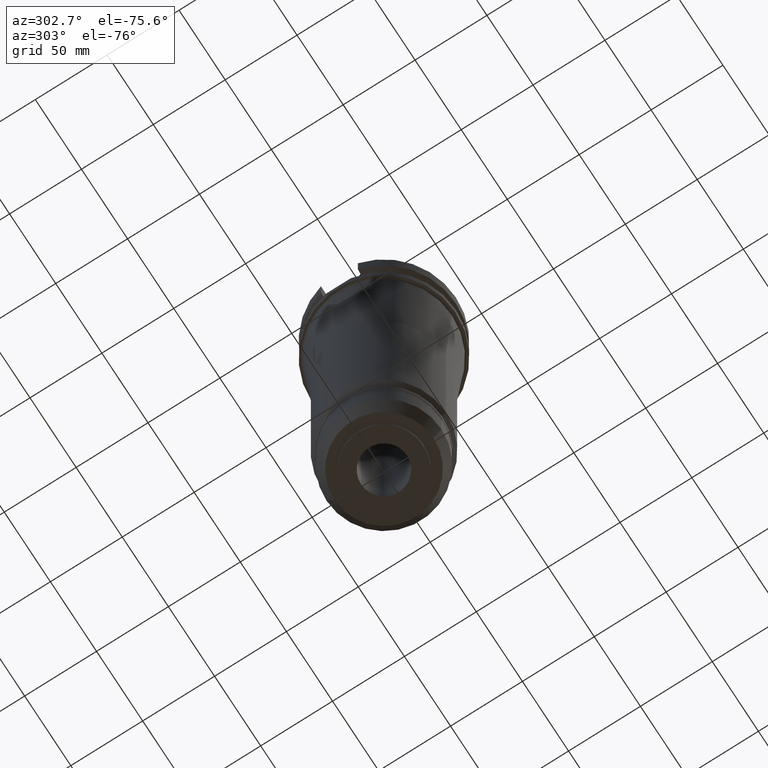
[diagram: clean part render]
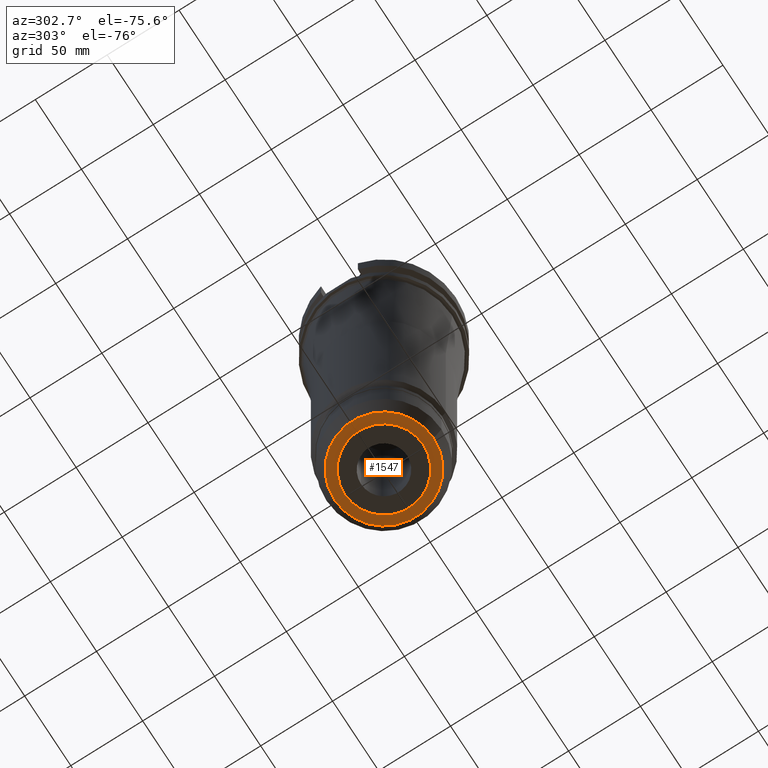
[diagram: same view with one face highlighted and labeled with its STEP entity id]
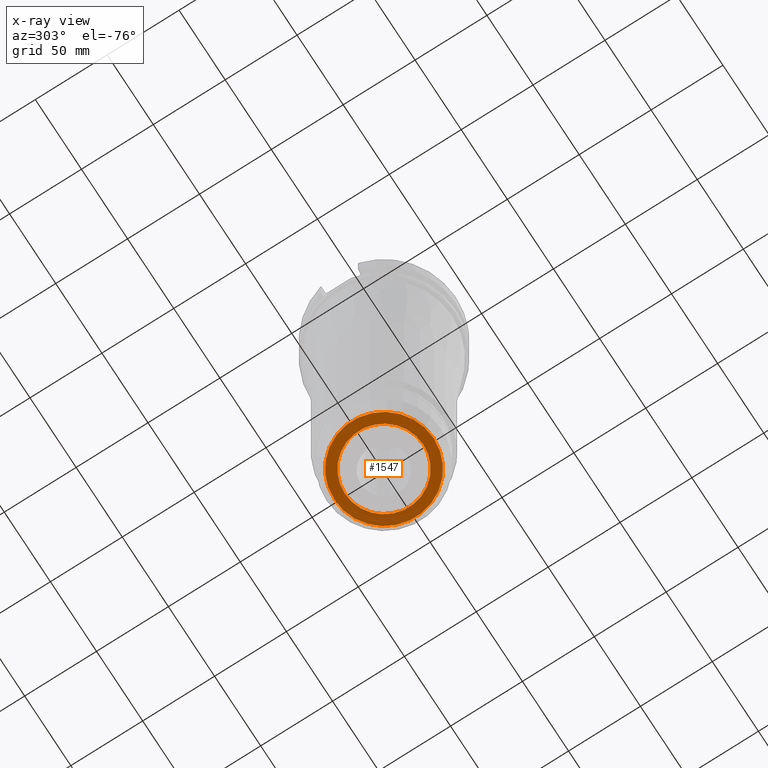
[diagram: x-ray of the same camera — body ghosted, the highlighted face saturated]
A machine part, auxiliary view. The second image highlights one B-rep face of the part: STEP entity #1547.
The next image is the same camera in x-ray: the body ghosted, the highlighted face saturated — about 0% of this face is hidden behind the body in this view.
In plain terms, the highlighted planar face has unit normal (0, 0, -1).
Its self-contained STEP definition (entity closure, byte-faithful):
#246=CARTESIAN_POINT('',(0.E0,-2.396021462532E-14,-3.004E2));
#247=DIRECTION('',(0.E0,0.E0,1.E0));
#248=DIRECTION('',(0.E0,-1.E0,0.E0));
#249=AXIS2_PLACEMENT_3D('',#246,#247,#248);
#254=CARTESIAN_POINT('',(0.E0,-2.396021462532E-14,-3.004E2));
#255=DIRECTION('',(0.E0,0.E0,1.E0));
#256=DIRECTION('',(0.E0,1.E0,0.E0));
#257=AXIS2_PLACEMENT_3D('',#254,#255,#256);
#262=CARTESIAN_POINT('',(0.E0,2.718838358787E-14,-3.004E2));
#263=DIRECTION('',(0.E0,0.E0,-1.E0));
#264=DIRECTION('',(0.E0,-1.E0,0.E0));
#265=AXIS2_PLACEMENT_3D('',#262,#263,#264);
#270=CARTESIAN_POINT('',(0.E0,2.718838358787E-14,-3.004E2));
#271=DIRECTION('',(0.E0,0.E0,-1.E0));
#272=DIRECTION('',(0.E0,1.E0,0.E0));
#273=AXIS2_PLACEMENT_3D('',#270,#271,#272);
#1165=CARTESIAN_POINT('',(0.E0,2.735E1,-3.004E2));
#1166=VERTEX_POINT('',#1165);
#1167=CARTESIAN_POINT('',(0.E0,-2.735E1,-3.004E2));
#1168=VERTEX_POINT('',#1167);
#1169=CARTESIAN_POINT('',(0.E0,-3.451517244270E1,-3.004E2));
#1170=CARTESIAN_POINT('',(0.E0,3.451517244270E1,-3.004E2));
#1171=VERTEX_POINT('',#1169);
#1172=VERTEX_POINT('',#1170);
#1532=CARTESIAN_POINT('',(0.E0,-2.454192185491E-14,-3.004E2));
#1533=DIRECTION('',(0.E0,0.E0,-1.E0));
#1534=DIRECTION('',(0.E0,-1.E0,0.E0));
#1535=AXIS2_PLACEMENT_3D('',#1532,#1533,#1534);
#1536=PLANE('',#1535);
#1538=ORIENTED_EDGE('',*,*,#1537,.T.);
#1540=ORIENTED_EDGE('',*,*,#1539,.T.);
#1541=EDGE_LOOP('',(#1538,#1540));
#1542=FACE_OUTER_BOUND('',#1541,.F.);
#1543=ORIENTED_EDGE('',*,*,#1525,.T.);
#1544=ORIENTED_EDGE('',*,*,#1514,.T.);
#1545=EDGE_LOOP('',(#1543,#1544));
#1546=FACE_BOUND('',#1545,.F.);
#250=CIRCLE('',#249,3.451517244270E1);
#258=CIRCLE('',#257,3.451517244270E1);
#266=CIRCLE('',#265,2.735E1);
#274=CIRCLE('',#273,2.735E1);
#1514=EDGE_CURVE('',#1166,#1168,#274,.T.);
#1525=EDGE_CURVE('',#1168,#1166,#266,.T.);
#1537=EDGE_CURVE('',#1171,#1172,#250,.T.);
#1539=EDGE_CURVE('',#1172,#1171,#258,.T.);
#1547=ADVANCED_FACE('',(#1542,#1546),#1536,.T.);